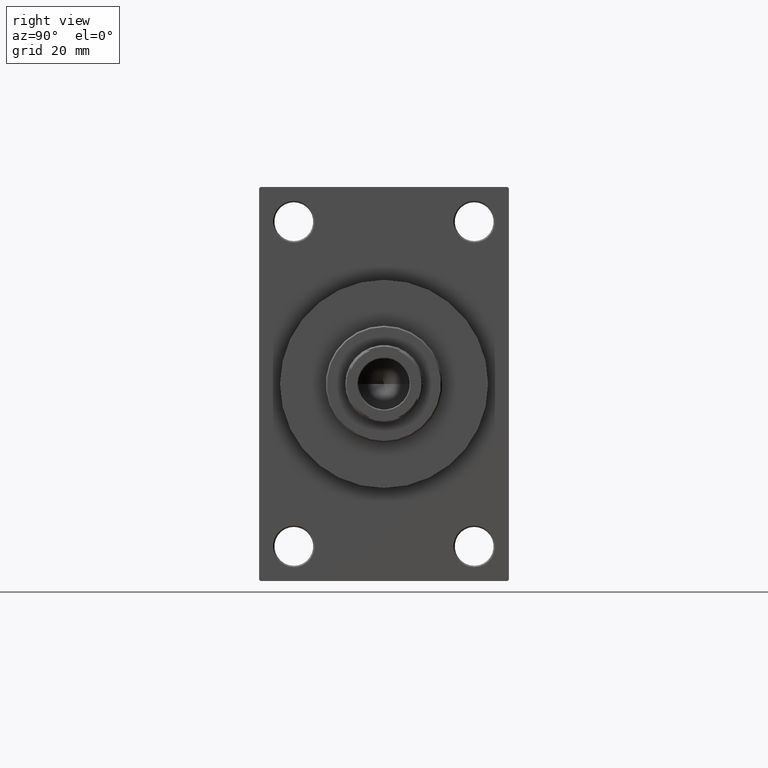
[diagram: clean part render]
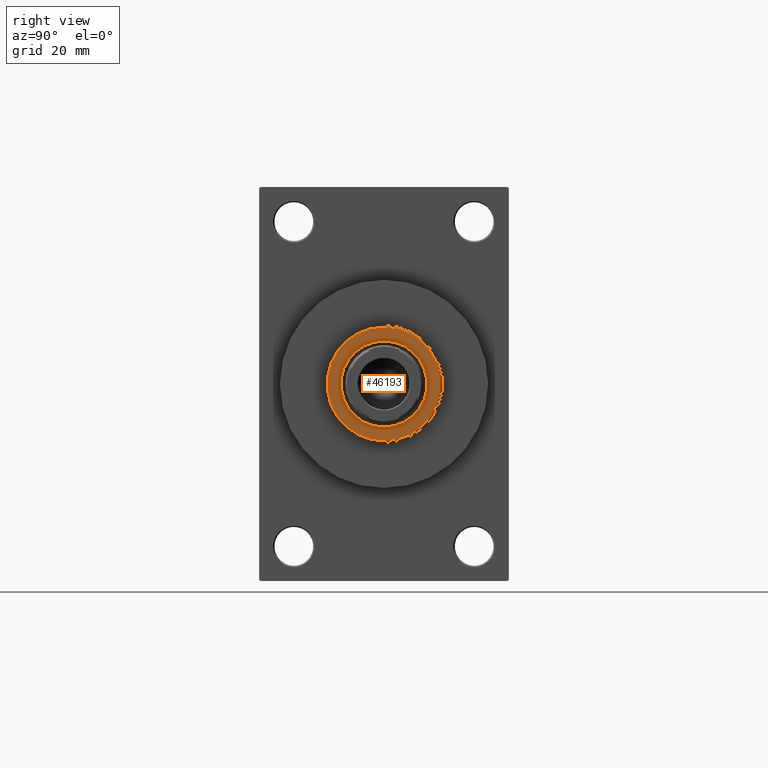
[diagram: same view with one face highlighted and labeled with its STEP entity id]
A machine part, right view. The second image highlights one B-rep face of the part: STEP entity #46193.
In plain terms, the highlighted planar face has unit normal (1, -0, -0).
Its self-contained STEP definition (entity closure, byte-faithful):
#219 = DIRECTION ( 'NONE',  ( 1.000000000000000000, 0.000000000000000000, 0.000000000000000000 ) ) ;
#3406 = VERTEX_POINT ( 'NONE', #39916 ) ;
#5354 = FACE_OUTER_BOUND ( 'NONE', #15878, .T. ) ;
#5668 = DIRECTION ( 'NONE',  ( 1.000000000000000000, 0.000000000000000000, 0.000000000000000000 ) ) ;
#5826 = FACE_BOUND ( 'NONE', #9171, .T. ) ;
#7051 = AXIS2_PLACEMENT_3D ( 'NONE', #38792, #45940, #16345 ) ;
#7824 = VERTEX_POINT ( 'NONE', #46330 ) ;
#7859 = DIRECTION ( 'NONE',  ( 0.000000000000000000, 0.000000000000000000, 1.000000000000000000 ) ) ;
#9171 = EDGE_LOOP ( 'NONE', ( #34137, #19679 ) ) ;
#10239 = EDGE_CURVE ( 'NONE', #31484, #41591, #13533, .T. ) ;
#11062 = ORIENTED_EDGE ( 'NONE', *, *, #10239, .T. ) ;
#11229 = AXIS2_PLACEMENT_3D ( 'NONE', #24076, #31008, #5668 ) ;
#11987 = DIRECTION ( 'NONE',  ( 1.000000000000000000, 0.000000000000000000, 0.000000000000000000 ) ) ;
#13533 = CIRCLE ( 'NONE', #42537, 20.50000000000001776 ) ;
#14317 = CARTESIAN_POINT ( 'NONE',  ( 0.000000000000000000, 0.000000000000000000, 54.26000000000000512 ) ) ;
#15878 = EDGE_LOOP ( 'NONE', ( #11062, #18219 ) ) ;
#16345 = DIRECTION ( 'NONE',  ( 1.000000000000000000, 0.000000000000000000, -0.000000000000000000 ) ) ;
#17169 = EDGE_CURVE ( 'NONE', #41591, #31484, #40205, .T. ) ;
#18219 = ORIENTED_EDGE ( 'NONE', *, *, #17169, .T. ) ;
#19679 = ORIENTED_EDGE ( 'NONE', *, *, #28251, .F. ) ;
#21011 = DIRECTION ( 'NONE',  ( 1.000000000000000000, 0.000000000000000000, 0.000000000000000000 ) ) ;
#22967 = DIRECTION ( 'NONE',  ( 0.000000000000000000, 0.000000000000000000, 1.000000000000000000 ) ) ;
#24076 = CARTESIAN_POINT ( 'NONE',  ( 0.000000000000000000, 0.000000000000000000, 54.26000000000000512 ) ) ;
#24199 = AXIS2_PLACEMENT_3D ( 'NONE', #14317, #7859, #219 ) ;
#28251 = EDGE_CURVE ( 'NONE', #3406, #7824, #35975, .T. ) ;
#28528 = CARTESIAN_POINT ( 'NONE',  ( -20.50000000000001776, 0.000000000000000000, 54.26000000000000512 ) ) ;
#31008 = DIRECTION ( 'NONE',  ( 0.000000000000000000, 0.000000000000000000, 1.000000000000000000 ) ) ;
#31484 = VERTEX_POINT ( 'NONE', #28528 ) ;
#34137 = ORIENTED_EDGE ( 'NONE', *, *, #44269, .F. ) ;
#34208 = CARTESIAN_POINT ( 'NONE',  ( 20.50000000000001776, 2.541142108230759057E-15, 54.26000000000000512 ) ) ;
#35975 = CIRCLE ( 'NONE', #42060, 15.50000000000000000 ) ;
#36611 = CARTESIAN_POINT ( 'NONE',  ( 0.000000000000000000, 0.000000000000000000, 54.26000000000000512 ) ) ;
#38792 = CARTESIAN_POINT ( 'NONE',  ( 0.000000000000000000, 0.000000000000000000, 54.26000000000000512 ) ) ;
#39916 = CARTESIAN_POINT ( 'NONE',  ( -15.50000000000000000, 1.898202538678397557E-15, 54.26000000000000512 ) ) ;
#40205 = CIRCLE ( 'NONE', #11229, 20.50000000000001776 ) ;
#40986 = CIRCLE ( 'NONE', #24199, 15.50000000000000000 ) ;
#41434 = PLANE ( 'NONE',  #7051 ) ;
#41591 = VERTEX_POINT ( 'NONE', #34208 ) ;
#42060 = AXIS2_PLACEMENT_3D ( 'NONE', #36611, #22967, #11987 ) ;
#42537 = AXIS2_PLACEMENT_3D ( 'NONE', #46319, #42738, #21011 ) ;
#42738 = DIRECTION ( 'NONE',  ( 0.000000000000000000, 0.000000000000000000, 1.000000000000000000 ) ) ;
#44269 = EDGE_CURVE ( 'NONE', #7824, #3406, #40986, .T. ) ;
#45940 = DIRECTION ( 'NONE',  ( 0.000000000000000000, 0.000000000000000000, 1.000000000000000000 ) ) ;
#46193 = ADVANCED_FACE ( 'NONE', ( #5826, #5354 ), #41434, .T. ) ;
#46319 = CARTESIAN_POINT ( 'NONE',  ( 0.000000000000000000, 0.000000000000000000, 54.26000000000000512 ) ) ;
#46330 = CARTESIAN_POINT ( 'NONE',  ( 15.50000000000000000, 0.000000000000000000, 54.26000000000000512 ) ) ;